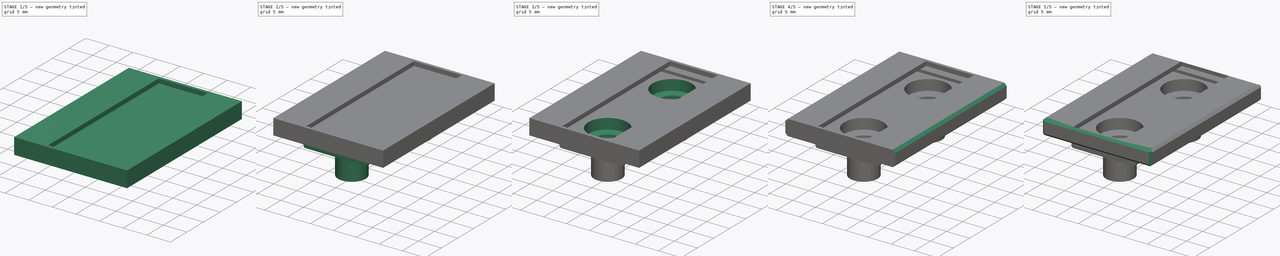
[diagram: build sequence overview — one tinted view per stage of 5, left to right]
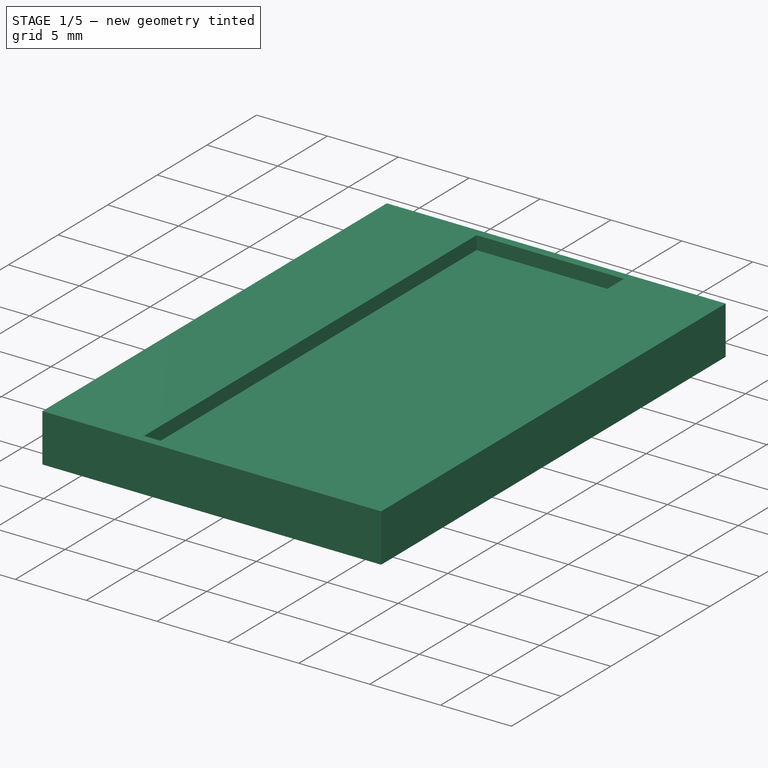
[diagram: stage 1 of 5 — iso view after this stage's code; geometry added in this stage tinted green]
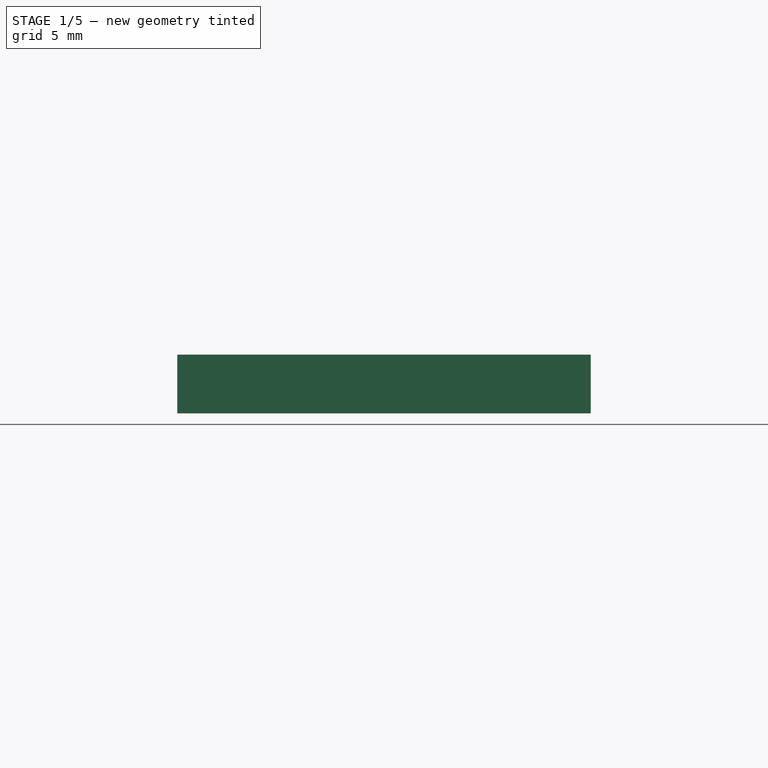
[diagram: stage 1 of 5 — front view after this stage's code; geometry added in this stage tinted green]
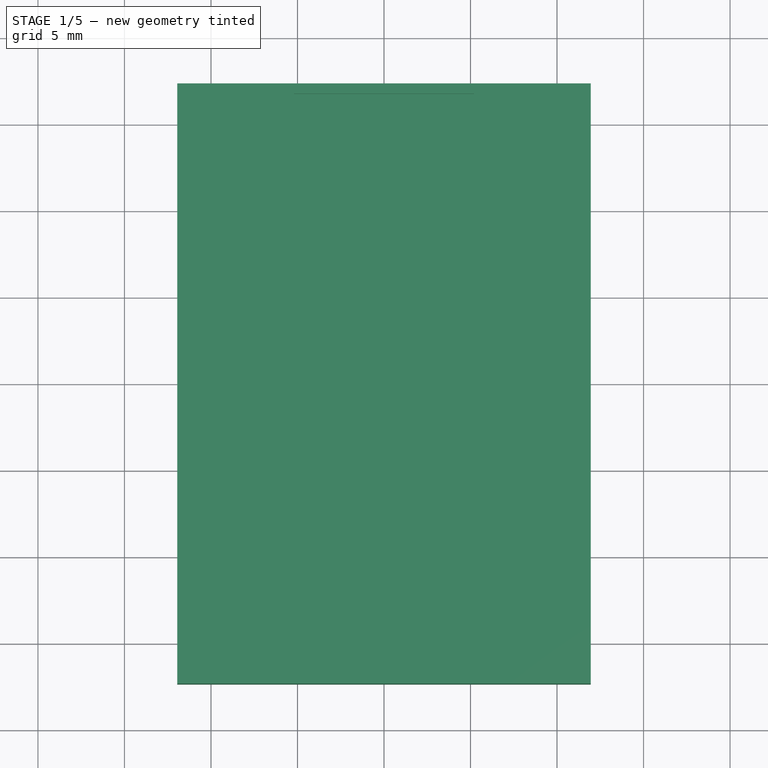
[diagram: stage 1 of 5 — top view after this stage's code; geometry added in this stage tinted green]
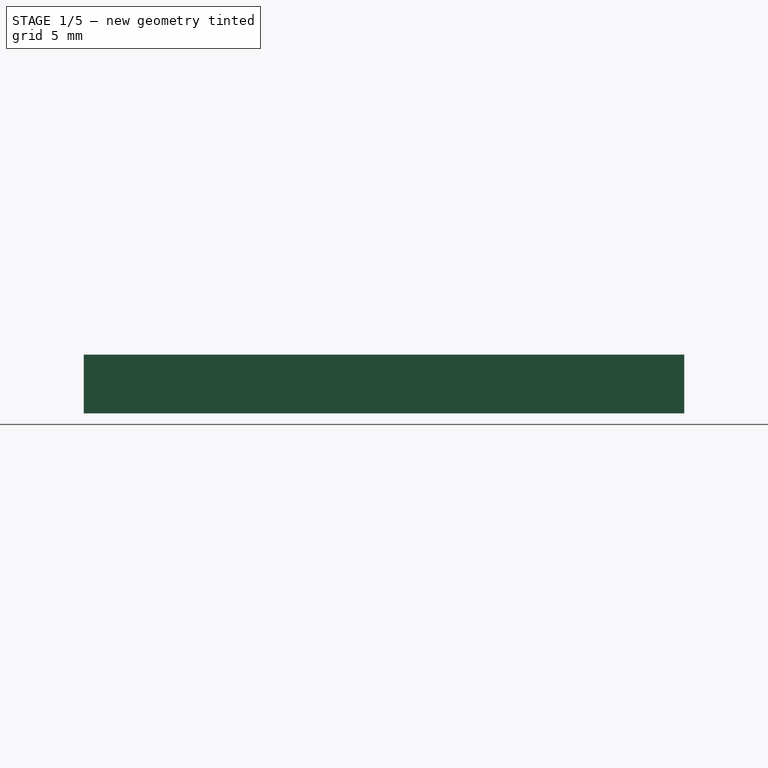
[diagram: stage 1 of 5 — right view after this stage's code; geometry added in this stage tinted green]
FCSTD DOCUMENT  (FreeCAD 0.14R3310 (Git))
Label: 18. GUIA DEL PERFIL NW_11_27_2
License: CC-BY 3.0
LicenseURL: http://creativecommons.org/licenses/by/3.0/
objects: Sketcher::SketchObject×9, PartDesign::Pocket×5, PartDesign::Chamfer×5, PartDesign::Pad×4, PartDesign::Fillet×1, Part::Cut×1
note: 34 computed .brp shape members not serialized (recipe doc carries the construction recipe); baked Part::Feature solids carry a one-line shape summary decoded from their .brp

FEATURE [Sketcher::SketchObject] Sketch
  sketch-geometry (4):
    g0: LineSegment StartX=-11.95 StartY=17.35 StartZ=0 EndX=11.95 EndY=17.35 EndZ=0
    g1: LineSegment StartX=11.95 StartY=17.35 StartZ=0 EndX=11.95 EndY=-17.35 EndZ=0
    g2: LineSegment StartX=11.95 StartY=-17.35 StartZ=0 EndX=-11.95 EndY=-17.35 EndZ=0
    g3: LineSegment StartX=-11.95 StartY=-17.35 StartZ=0 EndX=-11.95 EndY=17.35 EndZ=0
  constraints (11):
    c: Coincident(g0,g1)
    c: Coincident(g1,g2)
    c: Coincident(g2,g3)
    c: Coincident(g3,g0)
    c: Horizontal(g0)
    c: Horizontal(g2)
    c: Vertical(g1)
    c: Vertical(g3)
    c: Symmetric(g1,g0,g-1)
    c: Distance(g0) = 23.9
    c: Distance(g1) = 34.7
FEATURE [PartDesign::Pad] Pad
  Length = 3.4
  Length2 = 100
  Sketch = -> Sketch
  Type = 0
FEATURE [Sketcher::SketchObject] Sketch001
  Placement = pos=(0,0,3.4) rot=(0,0,1;0rad)
  Support = -> Pad [Face6]
  sketch-geometry (4):
    g0: LineSegment StartX=-5.2 StartY=16.75 StartZ=0 EndX=5.2 EndY=16.75 EndZ=0
    g1: LineSegment StartX=5.2 StartY=16.75 StartZ=0 EndX=5.2 EndY=-16.75 EndZ=0
    g2: LineSegment StartX=5.2 StartY=-16.75 StartZ=0 EndX=-5.2 EndY=-16.75 EndZ=0
    g3: LineSegment StartX=-5.2 StartY=-16.75 StartZ=0 EndX=-5.2 EndY=16.75 EndZ=0
  constraints (11):
    c: Coincident(g0,g1)
    c: Coincident(g1,g2)
    c: Coincident(g2,g3)
    c: Coincident(g3,g0)
    c: Horizontal(g0)
    c: Horizontal(g2)
    c: Vertical(g1)
    c: Vertical(g3)
    c: Symmetric(g1,g0,g-1)
    c: Distance(g0) = 10.4
    c: Distance(g1) = 33.5
FEATURE [PartDesign::Pocket] Pocket
  Length = 0.95
  Sketch = -> Sketch001
  Type = 0
FEATURE [Sketcher::SketchObject] Sketch005
  Placement = pos=(0,0,0) rot=(0.57735,0.57735,0.57735;2.0944rad)
  sketch-geometry (4):
    g0: LineSegment StartX=-15 StartY=1.85 StartZ=0 EndX=15 EndY=1.85 EndZ=0
    g1: LineSegment StartX=15 StartY=1.85 StartZ=0 EndX=15 EndY=2.45 EndZ=0
    g2: LineSegment StartX=15 StartY=2.45 StartZ=0 EndX=-15 EndY=2.45 EndZ=0
    g3: LineSegment StartX=-15 StartY=2.45 StartZ=0 EndX=-15 EndY=1.85 EndZ=0
  constraints (12):
    c: Coincident(g0,g1)
    c: Coincident(g1,g2)
    c: Coincident(g2,g3)
    c: Coincident(g3,g0)
    c: Horizontal(g0)
    c: Horizontal(g2)
    c: Vertical(g1)
    c: Vertical(g3)
    c: DistanceY(g-1,g0) = 1.85
    c: Symmetric(g1,g2,g-2)
    c: Distance(g0) = 30
    c: Distance(g1) = 0.6
FEATURE [PartDesign::Pad] Pad003
  Length = 14
  Length2 = 100
  Midplane = true
  Placement = pos=(0,0,0) rot=(0.57735,0.57735,0.57735;2.0944rad)
  Sketch = -> Sketch005
  Type = 0
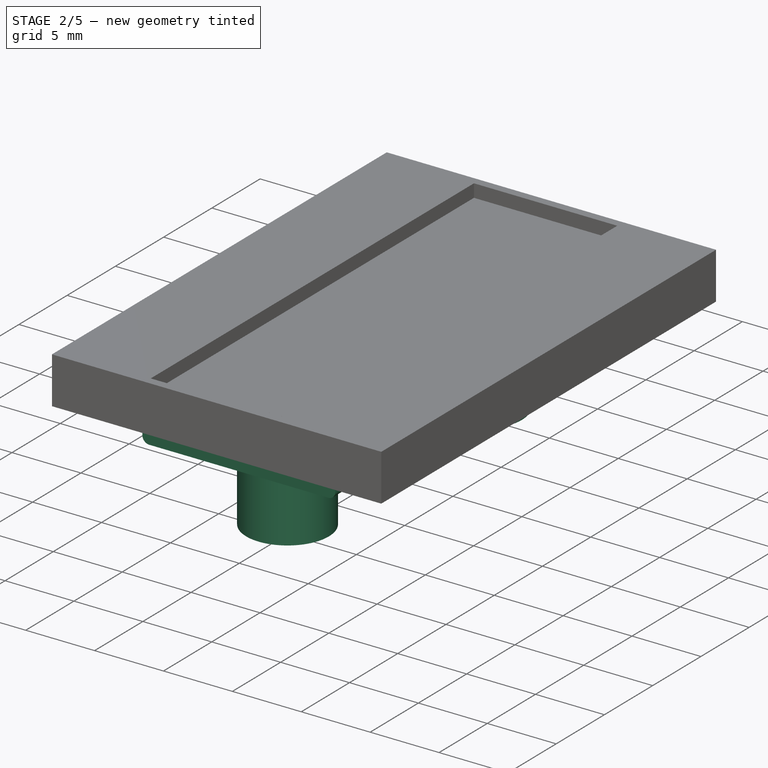
[diagram: stage 2 of 5 — iso view after this stage's code; geometry added in this stage tinted green]
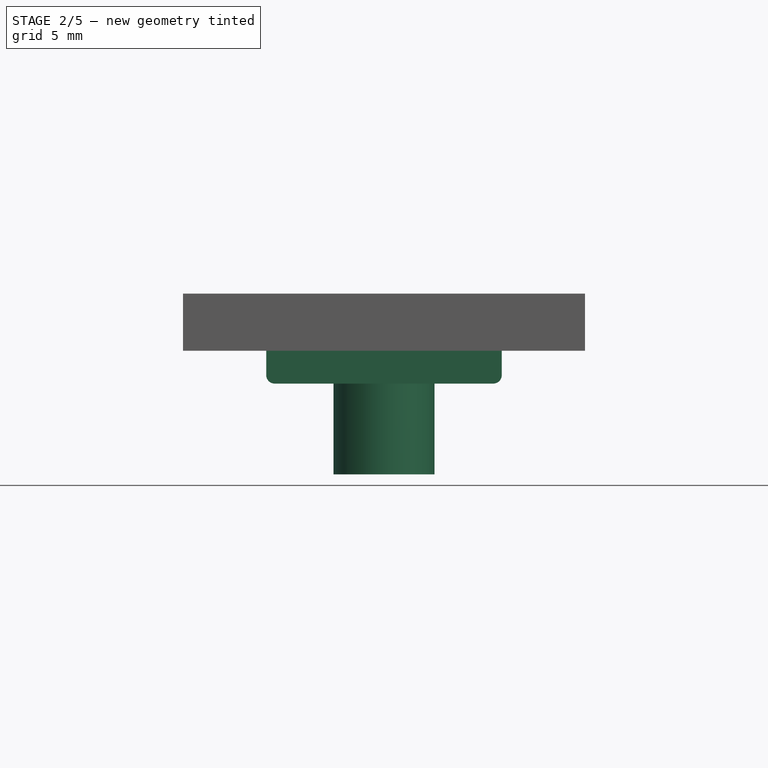
[diagram: stage 2 of 5 — front view after this stage's code; geometry added in this stage tinted green]
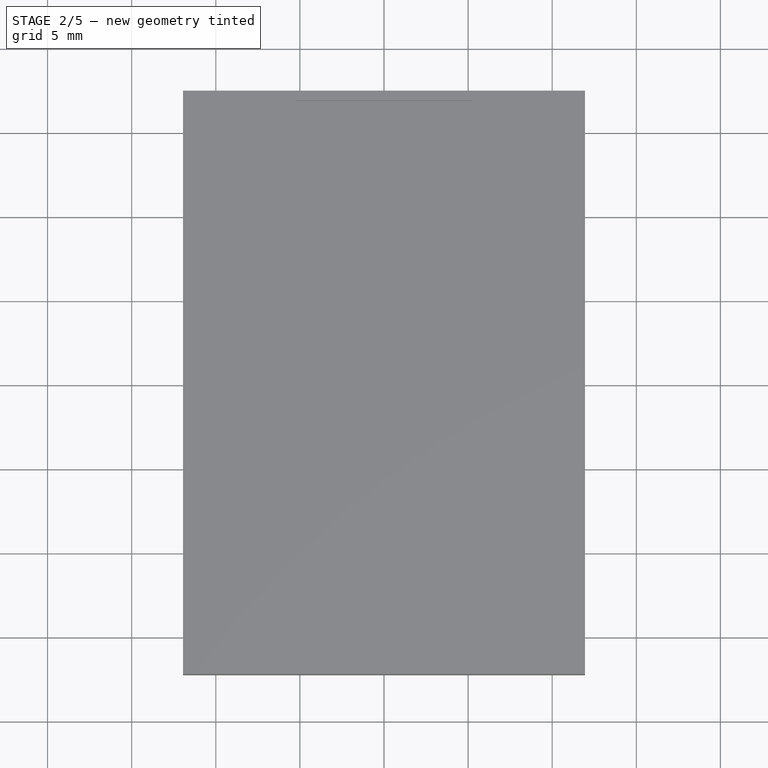
[diagram: stage 2 of 5 — top view after this stage's code; geometry added in this stage tinted green]
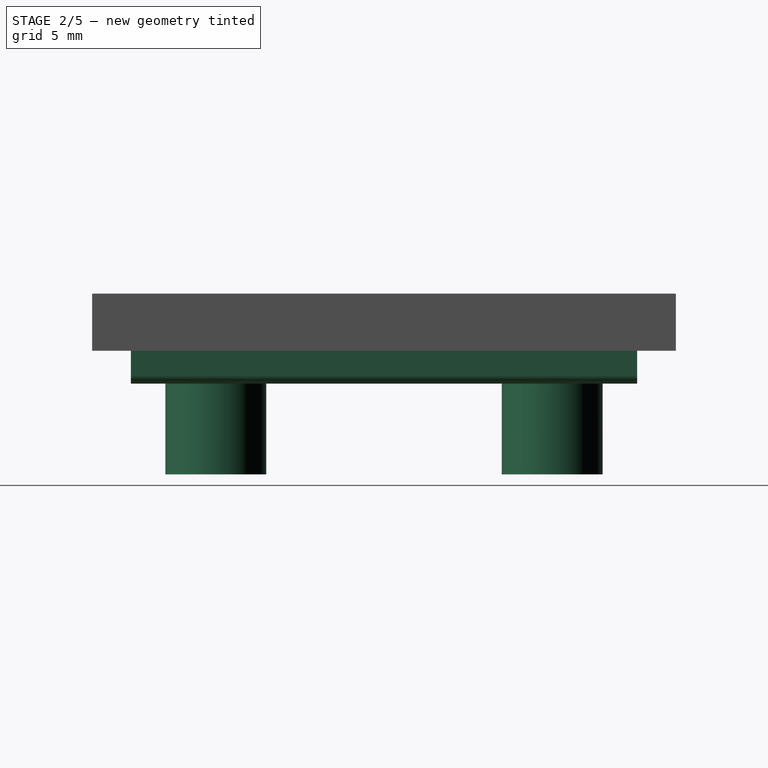
[diagram: stage 2 of 5 — right view after this stage's code; geometry added in this stage tinted green]
FEATURE [Sketcher::SketchObject] Sketch002
  Placement = pos=(0,0,0) rot=(1,0,0;3.14159rad)
  Support = -> Pocket [Face4]
  sketch-geometry (4):
    g0: LineSegment StartX=-7 StartY=15.05 StartZ=0 EndX=7 EndY=15.05 EndZ=0
    g1: LineSegment StartX=7 StartY=15.05 StartZ=0 EndX=7 EndY=-15.05 EndZ=0
    g2: LineSegment StartX=7 StartY=-15.05 StartZ=0 EndX=-7 EndY=-15.05 EndZ=0
    g3: LineSegment StartX=-7 StartY=-15.05 StartZ=0 EndX=-7 EndY=15.05 EndZ=0
  constraints (11):
    c: Coincident(g0,g1)
    c: Coincident(g1,g2)
    c: Coincident(g2,g3)
    c: Coincident(g3,g0)
    c: Horizontal(g0)
    c: Horizontal(g2)
    c: Vertical(g1)
    c: Vertical(g3)
    c: Symmetric(g1,g0,g-1)
    c: Distance(g1) = 30.1
    c: Distance(g0) = 14
FEATURE [PartDesign::Pad] Pad001
  Length = 1.95
  Length2 = 100
  Sketch = -> Sketch002
  Type = 0
FEATURE [PartDesign::Fillet] Fillet
  Base = -> Pad001 [Edge22,Edge26]
  Radius = 0.5
FEATURE [Sketcher::SketchObject] Sketch003
  Placement = pos=(0,0,-1.95) rot=(1,0,0;3.14159rad)
  Support = -> Fillet [Face8]
  sketch-geometry (2):
    g0: Circle CenterX=0 CenterY=10 CenterZ=0 NormalX=0 NormalY=0 NormalZ=1 Radius=3
    g1: Circle CenterX=0 CenterY=-10 CenterZ=0 NormalX=0 NormalY=0 NormalZ=1 Radius=3
  constraints (6):
    c: PointOnObject(g0,g-2)
    c: PointOnObject(g1,g-2)
    c: Symmetric(g0,g1,g-1)
    c: Distance(g0,g1) = 20
    c: Radius(g0) = 3
    c: Equal(g0,g1)
FEATURE [PartDesign::Pad] Pad002
  Length = 5.4
  Length2 = 100
  Sketch = -> Sketch003
  Type = 0
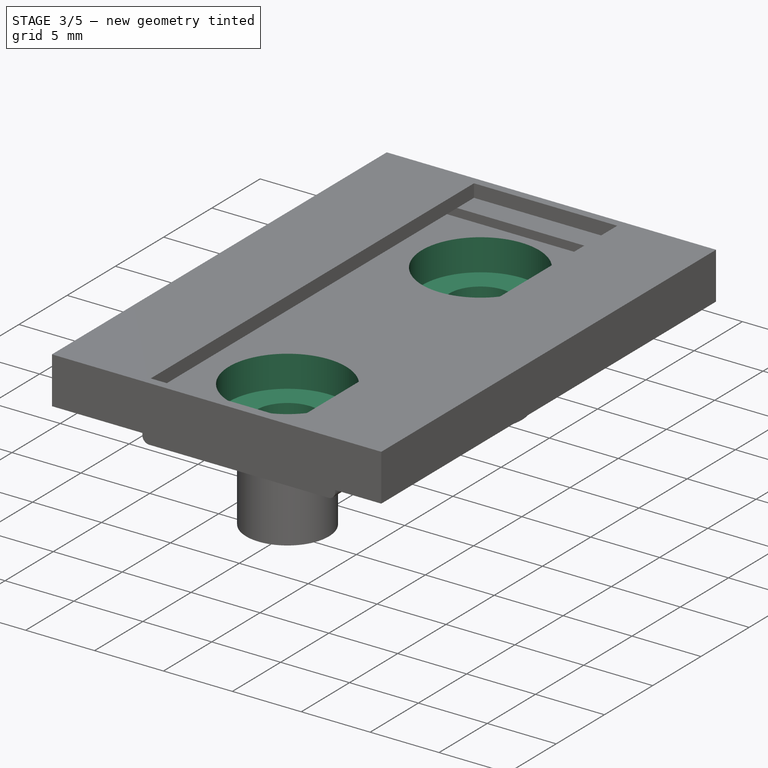
[diagram: stage 3 of 5 — iso view after this stage's code; geometry added in this stage tinted green]
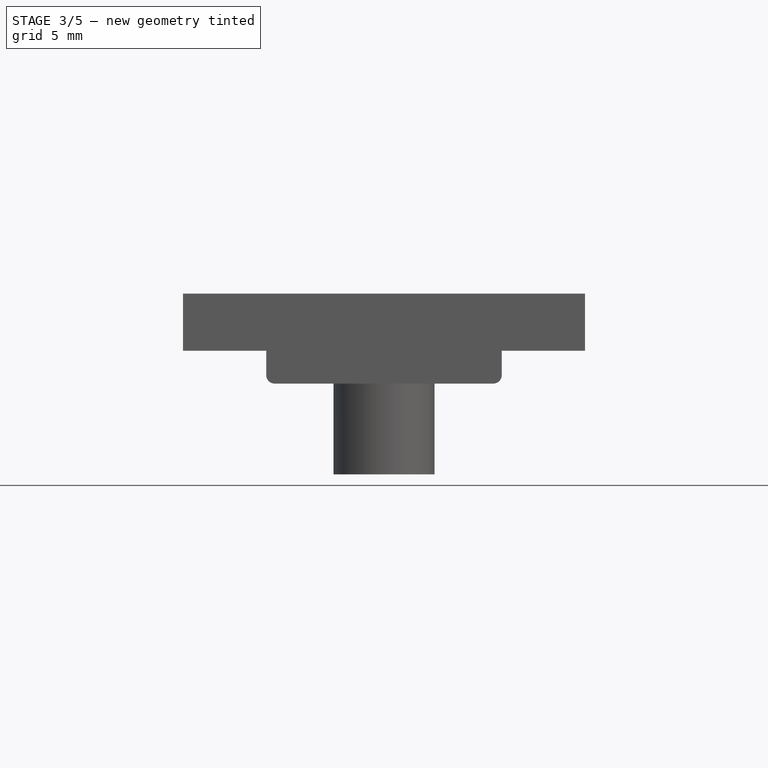
[diagram: stage 3 of 5 — front view after this stage's code; geometry added in this stage tinted green]
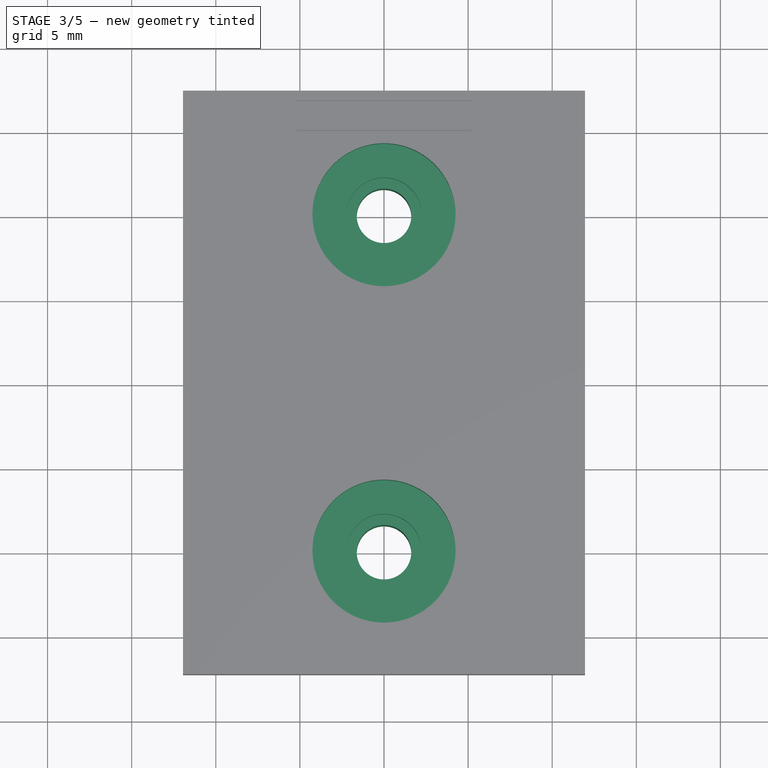
[diagram: stage 3 of 5 — top view after this stage's code; geometry added in this stage tinted green]
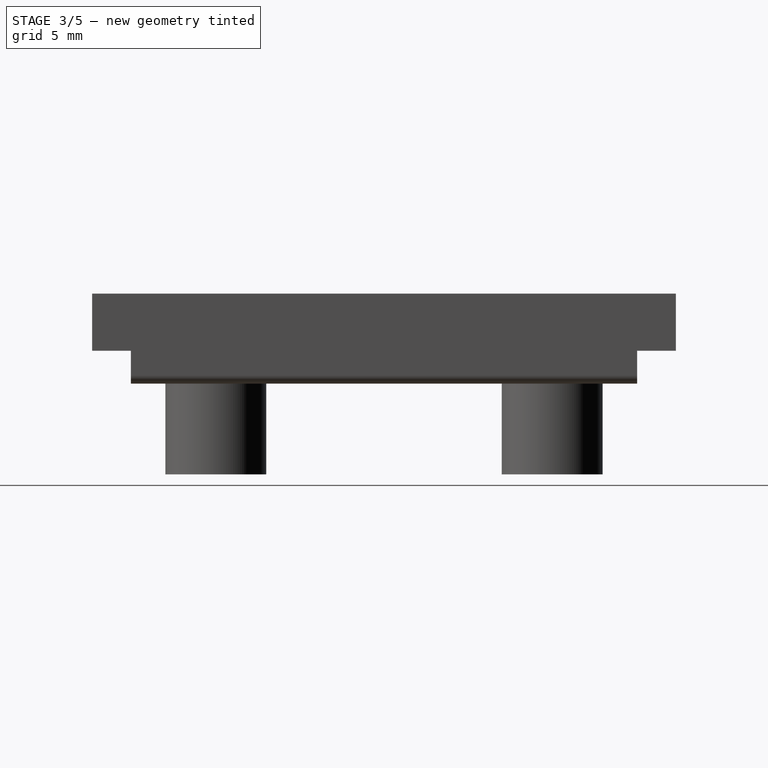
[diagram: stage 3 of 5 — right view after this stage's code; geometry added in this stage tinted green]
FEATURE [Sketcher::SketchObject] Sketch004
  Placement = pos=(0,0,-7.35) rot=(1,0,0;3.14159rad)
  Support = -> Pad002 [Face17]
  sketch-geometry (2):
    g0: Circle CenterX=0 CenterY=-10 CenterZ=0 NormalX=0 NormalY=0 NormalZ=1 Radius=1.62
    g1: Circle CenterX=0 CenterY=10 CenterZ=0 NormalX=0 NormalY=0 NormalZ=1 Radius=1.62
  constraints (6):
    c: PointOnObject(g0,g-2)
    c: PointOnObject(g1,g-2)
    c: Distance(g1,g0) = 20
    c: Symmetric(g1,g0,g-1)
    c: Radius(g1) = 1.62
    c: Equal(g1,g0)
FEATURE [PartDesign::Pocket] Pocket001
  Length = 5
  Sketch = -> Sketch004
  Type = 1
FEATURE [Part::Cut] Cut
  Base = -> Pocket001
  Tool = -> Pad003
FEATURE [Sketcher::SketchObject] Sketch006
  Placement = pos=(0,0,1.85) rot=(0,0,1;0rad)
  Support = -> Cut [Face28]
  sketch-geometry (2):
    g0: Circle CenterX=0 CenterY=10 CenterZ=0 NormalX=0 NormalY=0 NormalZ=1 Radius=4.25
    g1: Circle CenterX=0 CenterY=-10 CenterZ=0 NormalX=0 NormalY=0 NormalZ=1 Radius=4.25
  constraints (6):
    c: PointOnObject(g0,g-2)
    c: PointOnObject(g1,g-2)
    c: Symmetric(g1,g0,g-1)
    c: Equal(g0,g1)
    c: Distance(g0,g1) = 20
    c: Radius(g0) = 4.25
FEATURE [PartDesign::Pocket] Pocket002
  Length = 2.3
  Sketch = -> Sketch006
  Type = 0
FEATURE [Sketcher::SketchObject] Sketch007
  Placement = pos=(0,0,-0.45) rot=(0,0,1;0rad)
  Support = -> Pocket002 [Face29]
  sketch-geometry (2):
    g0: Circle CenterX=0 CenterY=10 CenterZ=0 NormalX=0 NormalY=0 NormalZ=1 Radius=2.25
    g1: Circle CenterX=0 CenterY=-10 CenterZ=0 NormalX=0 NormalY=0 NormalZ=1 Radius=2.25
  constraints (6):
    c: PointOnObject(g0,g-2)
    c: PointOnObject(g1,g-2)
    c: Distance(g1,g0) = 20
    c: Symmetric(g0,g1,g-1)
    c: Radius(g0) = 2.25
    c: Equal(g1,g0)
FEATURE [PartDesign::Pocket] Pocket003
  Length = 1.5
  Sketch = -> Sketch007
  Type = 0
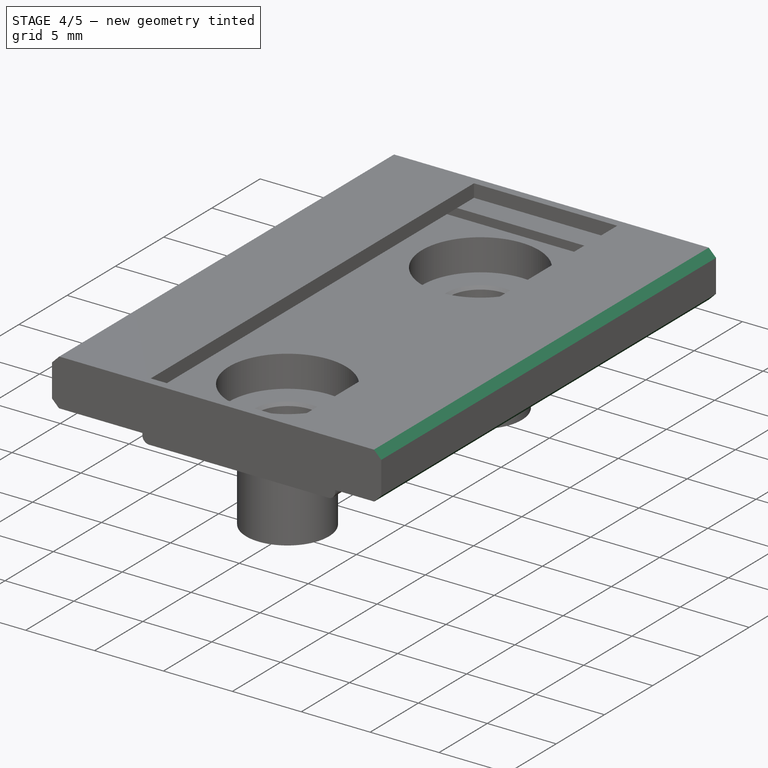
[diagram: stage 4 of 5 — iso view after this stage's code; geometry added in this stage tinted green]
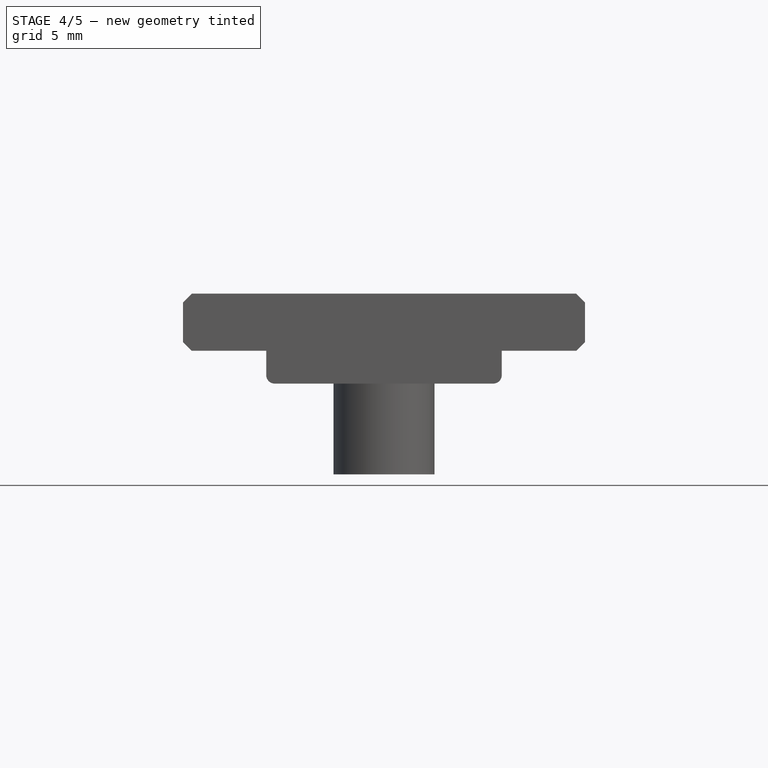
[diagram: stage 4 of 5 — front view after this stage's code; geometry added in this stage tinted green]
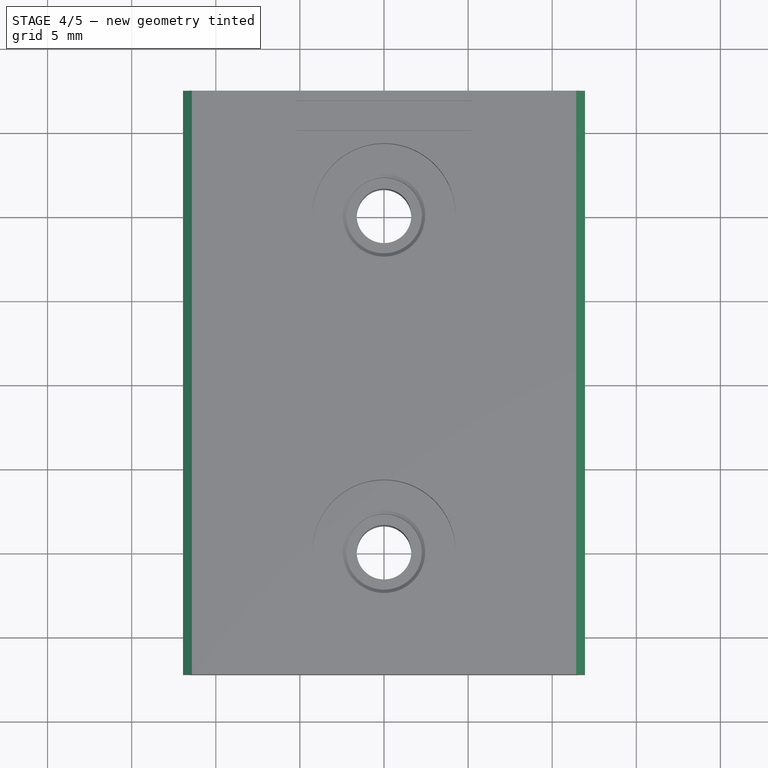
[diagram: stage 4 of 5 — top view after this stage's code; geometry added in this stage tinted green]
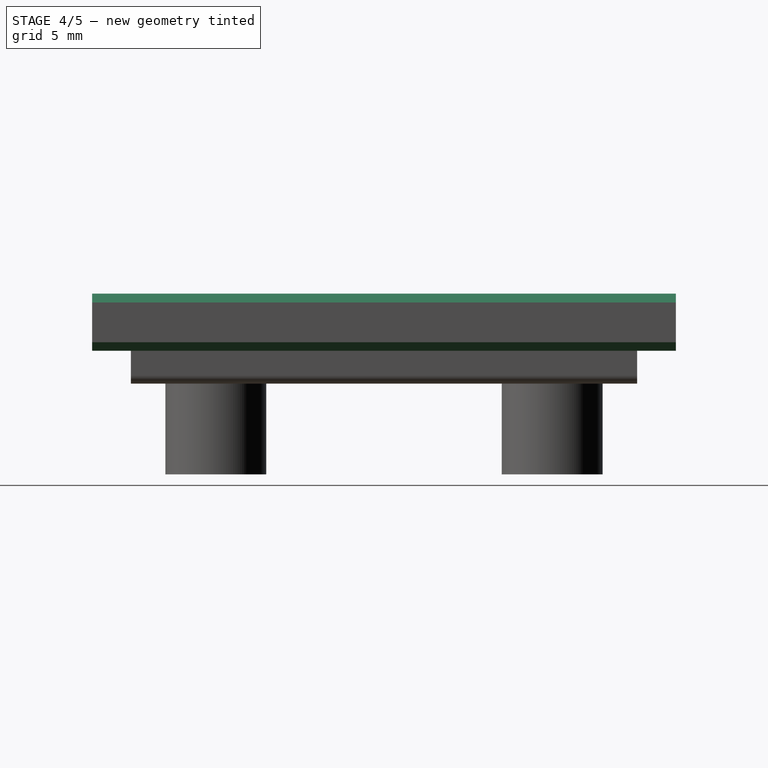
[diagram: stage 4 of 5 — right view after this stage's code; geometry added in this stage tinted green]
FEATURE [PartDesign::Chamfer] Chamfer
  Base = -> Pocket003 [Edge79,Edge77]
  Size = 0.2
FEATURE [PartDesign::Chamfer] Chamfer001
  Base = -> Chamfer [Edge81,Edge80]
  Size = 0.53
FEATURE [PartDesign::Chamfer] Chamfer002
  Base = -> Chamfer001 [Edge34,Edge33]
  Size = 0.51
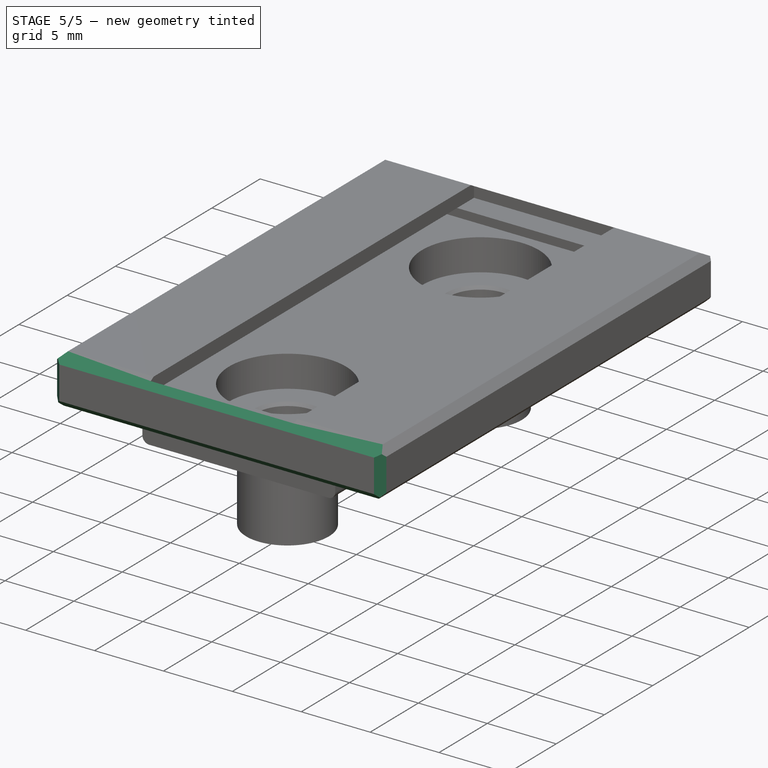
[diagram: stage 5 of 5 — iso view after this stage's code; geometry added in this stage tinted green]
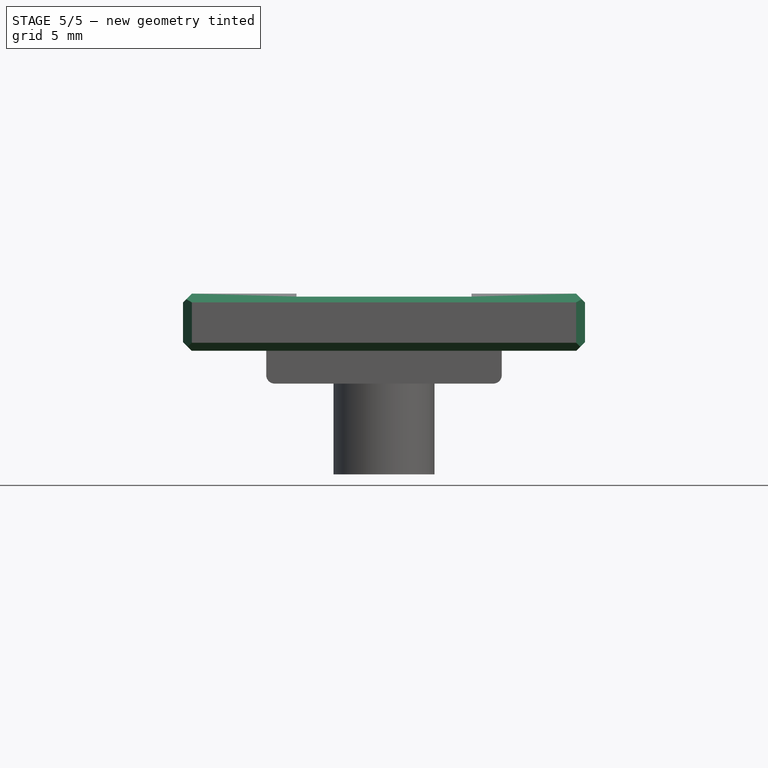
[diagram: stage 5 of 5 — front view after this stage's code; geometry added in this stage tinted green]
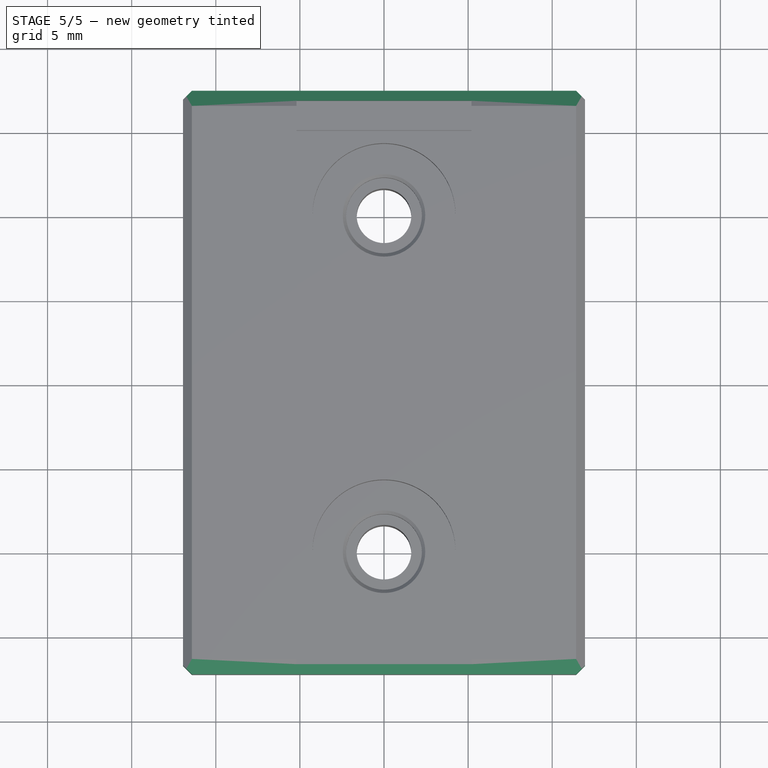
[diagram: stage 5 of 5 — top view after this stage's code; geometry added in this stage tinted green]
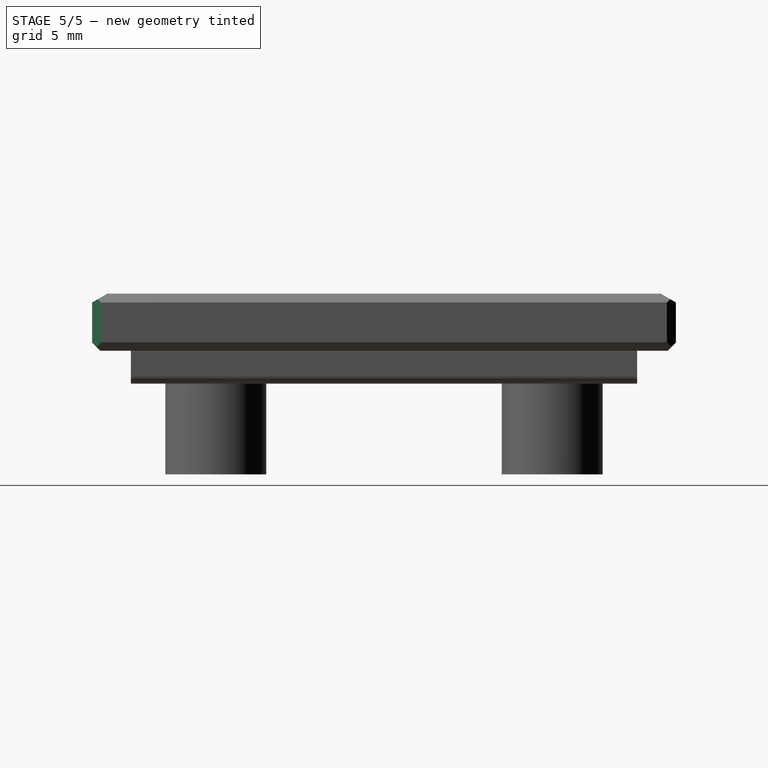
[diagram: stage 5 of 5 — right view after this stage's code; geometry added in this stage tinted green]
FEATURE [PartDesign::Chamfer] Chamfer003
  Base = -> Chamfer002 [Edge17,Edge4]
  Size = 0.48
FEATURE [Sketcher::SketchObject] Sketch008
  ExternalGeometry = -> [Chamfer003]
  Placement = pos=(11.95,0,0) rot=(0.57735,0.57735,0.57735;2.0944rad)
  Support = -> Chamfer003 [Face7]
  sketch-geometry (6):
    g0: LineSegment StartX=-16.4407 StartY=3.4 StartZ=0 EndX=-17.35 EndY=3.4 EndZ=0
    g1: LineSegment StartX=-17.35 StartY=3.4 StartZ=0 EndX=-17.35 EndY=2.875 EndZ=0
    g2: LineSegment StartX=-17.35 StartY=2.875 StartZ=0 EndX=-16.4407 EndY=3.4 EndZ=0
    g3: LineSegment StartX=16.4407 StartY=3.4 StartZ=0 EndX=17.35 EndY=3.4 EndZ=0
    g4: LineSegment StartX=17.35 StartY=3.4 StartZ=0 EndX=17.35 EndY=2.875 EndZ=0
    g5: LineSegment StartX=17.35 StartY=2.875 StartZ=0 EndX=16.4407 EndY=3.4 EndZ=0
  constraints (15):
    c: Horizontal(g0)
    c: Coincident(g0,g1)
    c: Vertical(g1)
    c: Coincident(g1,g2)
    c: Coincident(g2,g0)
    c: Horizontal(g3)
    c: Coincident(g3,g4)
    c: Vertical(g4)
    c: Coincident(g4,g5)
    c: Coincident(g5,g3)
    c: Symmetric(g3,g0,g-2)
    c: Symmetric(g4,g1,g-2)
    c: Coincident(g0,g-3)
    c: Angle(g2,g1) = 1.0472
    c: Distance(g2) = 1.05
FEATURE [PartDesign::Pocket] Pocket004
  Length = 5
  Sketch = -> Sketch008
  Type = 1
FEATURE [PartDesign::Chamfer] Chamfer004
  Base = -> Pocket004 [Edge17,Edge3,Edge7,Edge32]
  Size = 0.53
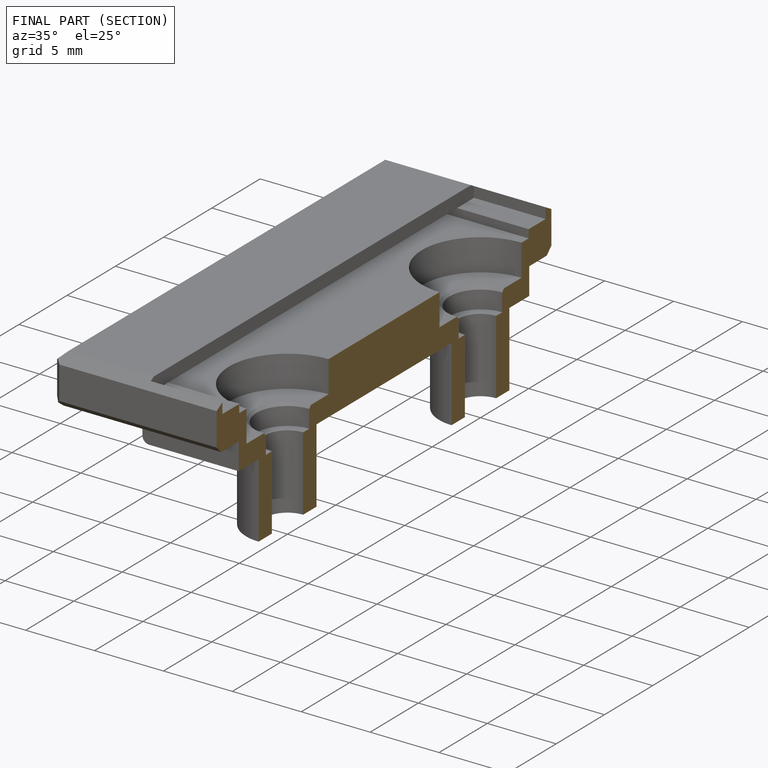
[diagram: finished part — half-section view (interior)]
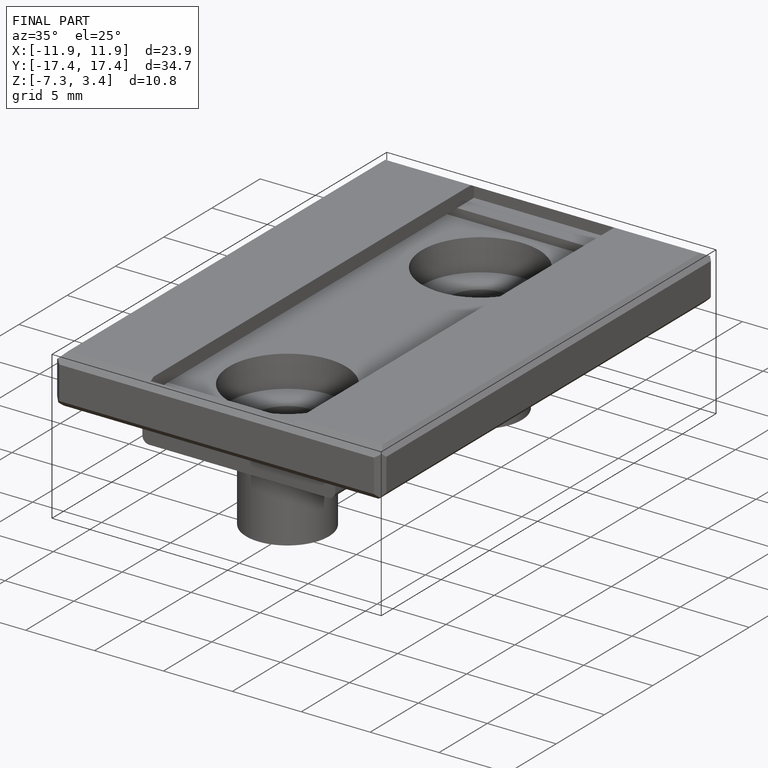
[diagram: finished part — iso view with bounding-box wireframe]
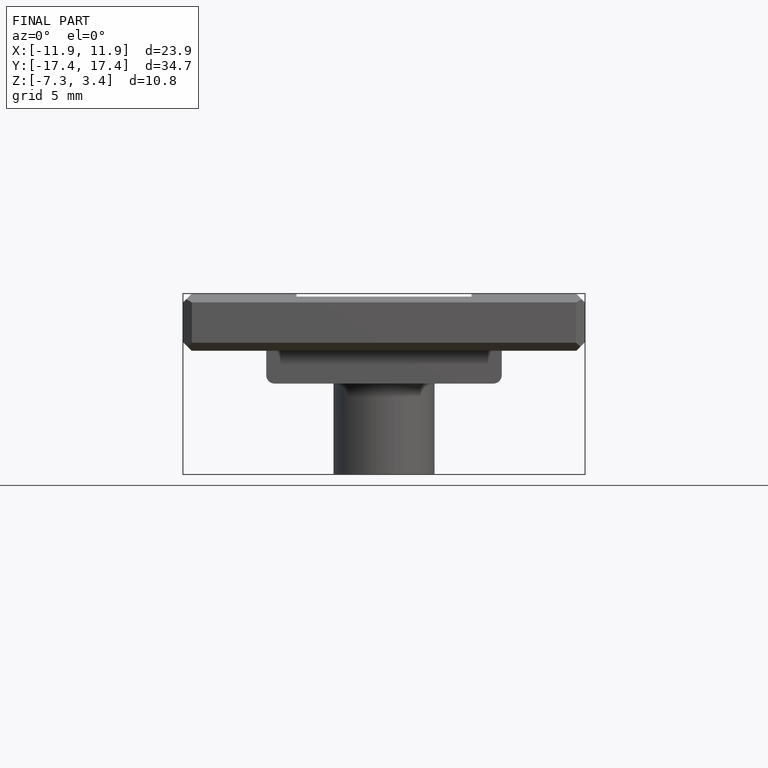
[diagram: finished part — front view with bounding-box wireframe]
